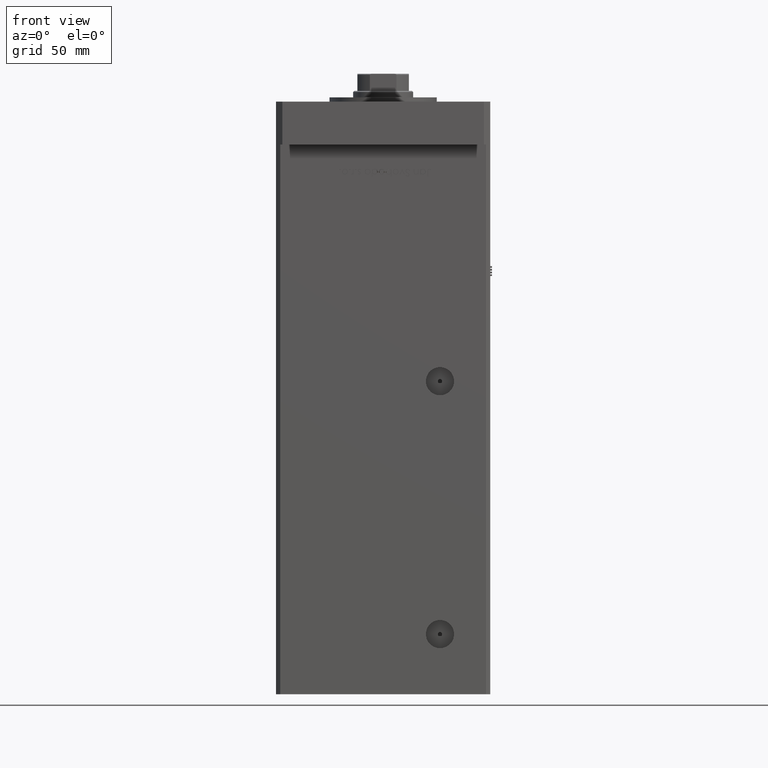
[diagram: clean part render]
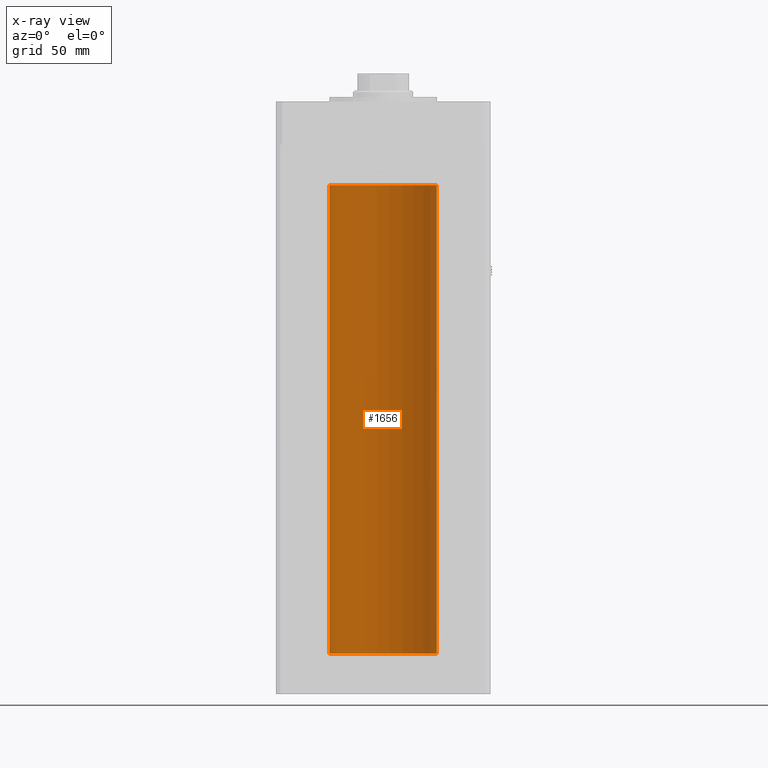
[diagram: x-ray — body ghosted, one internal face saturated and labeled with its STEP entity id]
A machine part, front view, then the same camera in x-ray: the body is ghosted and one INTERNAL B-rep face — a face not visible from any outside direction — is saturated and labeled: STEP entity #1656.
In plain terms, the highlighted cylindrical surface (partial cylindrical patch) has radius 25 mm, axis along (-0, -0, -1).
Its self-contained STEP definition (entity closure, byte-faithful):
#1656 = ADVANCED_FACE ( 'NONE', ( #26386 ), #43654, .F. ) ;
#2579 = AXIS2_PLACEMENT_3D ( 'NONE', #3381, #56022, #16619 ) ;
#3361 = CARTESIAN_POINT ( 'NONE',  ( 25.00000000000000000, 3.061616997868383043E-15, 218.5000000000000000 ) ) ;
#3381 = CARTESIAN_POINT ( 'NONE',  ( 0.000000000000000000, 0.000000000000000000, 218.5000000000000000 ) ) ;
#3978 = CARTESIAN_POINT ( 'NONE',  ( 0.000000000000000000, 0.000000000000000000, 218.5000000000000000 ) ) ;
#4432 = DIRECTION ( 'NONE',  ( -0.000000000000000000, 0.000000000000000000, 1.000000000000000000 ) ) ;
#6501 = VECTOR ( 'NONE', #33970, 1000.000000000000000 ) ;
#6865 = EDGE_CURVE ( 'NONE', #53324, #18205, #23834, .T. ) ;
#10513 = EDGE_CURVE ( 'NONE', #52948, #53324, #32829, .T. ) ;
#13974 = CARTESIAN_POINT ( 'NONE',  ( -25.00000000000000000, 0.000000000000000000, 0.000000000000000000 ) ) ;
#15228 = ORIENTED_EDGE ( 'NONE', *, *, #19010, .T. ) ;
#16489 = ORIENTED_EDGE ( 'NONE', *, *, #10513, .F. ) ;
#16619 = DIRECTION ( 'NONE',  ( 1.000000000000000000, 0.000000000000000000, 0.000000000000000000 ) ) ;
#18205 = VERTEX_POINT ( 'NONE', #13974 ) ;
#19010 = EDGE_CURVE ( 'NONE', #52948, #37459, #34735, .T. ) ;
#20657 = ORIENTED_EDGE ( 'NONE', *, *, #6865, .F. ) ;
#21692 = DIRECTION ( 'NONE',  ( 1.000000000000000000, 0.000000000000000000, 0.000000000000000000 ) ) ;
#23796 = AXIS2_PLACEMENT_3D ( 'NONE', #3978, #43934, #33894 ) ;
#23834 = CIRCLE ( 'NONE', #38541, 25.00000000000000000 ) ;
#26386 = FACE_OUTER_BOUND ( 'NONE', #31037, .T. ) ;
#30034 = CARTESIAN_POINT ( 'NONE',  ( 0.000000000000000000, 0.000000000000000000, 0.000000000000000000 ) ) ;
#31037 = EDGE_LOOP ( 'NONE', ( #16489, #15228, #44417, #20657 ) ) ;
#32829 = LINE ( 'NONE', #42592, #6501 ) ;
#33894 = DIRECTION ( 'NONE',  ( -1.000000000000000000, 0.000000000000000000, 0.000000000000000000 ) ) ;
#33927 = DIRECTION ( 'NONE',  ( -0.000000000000000000, -0.000000000000000000, -1.000000000000000000 ) ) ;
#33970 = DIRECTION ( 'NONE',  ( -0.000000000000000000, -0.000000000000000000, -1.000000000000000000 ) ) ;
#34735 = CIRCLE ( 'NONE', #2579, 25.00000000000000000 ) ;
#35164 = CARTESIAN_POINT ( 'NONE',  ( 25.00000000000000000, 3.061616997868383043E-15, 0.000000000000000000 ) ) ;
#37459 = VERTEX_POINT ( 'NONE', #48636 ) ;
#38541 = AXIS2_PLACEMENT_3D ( 'NONE', #30034, #4432, #21692 ) ;
#38641 = EDGE_CURVE ( 'NONE', #37459, #18205, #38802, .T. ) ;
#38802 = LINE ( 'NONE', #43404, #51724 ) ;
#42592 = CARTESIAN_POINT ( 'NONE',  ( 25.00000000000000000, 3.061616997868383043E-15, 218.5000000000000000 ) ) ;
#43404 = CARTESIAN_POINT ( 'NONE',  ( -25.00000000000000000, 0.000000000000000000, 218.5000000000000000 ) ) ;
#43654 = CYLINDRICAL_SURFACE ( 'NONE', #23796, 25.00000000000000000 ) ;
#43934 = DIRECTION ( 'NONE',  ( -0.000000000000000000, -0.000000000000000000, -1.000000000000000000 ) ) ;
#44417 = ORIENTED_EDGE ( 'NONE', *, *, #38641, .T. ) ;
#48636 = CARTESIAN_POINT ( 'NONE',  ( -25.00000000000000000, 0.000000000000000000, 218.5000000000000000 ) ) ;
#51724 = VECTOR ( 'NONE', #33927, 1000.000000000000000 ) ;
#52948 = VERTEX_POINT ( 'NONE', #3361 ) ;
#53324 = VERTEX_POINT ( 'NONE', #35164 ) ;
#56022 = DIRECTION ( 'NONE',  ( -0.000000000000000000, 0.000000000000000000, 1.000000000000000000 ) ) ;